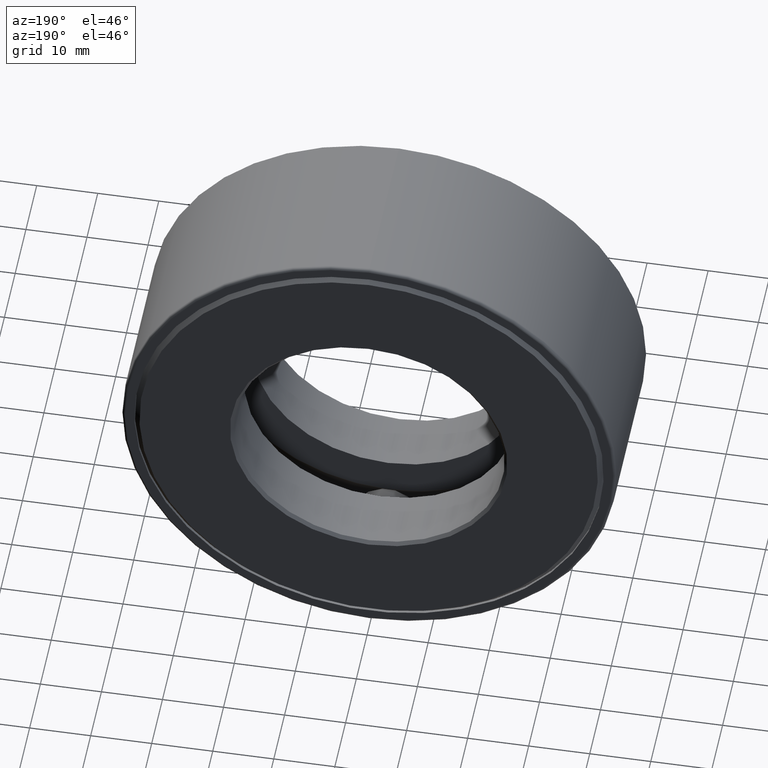
[diagram: clean part render]
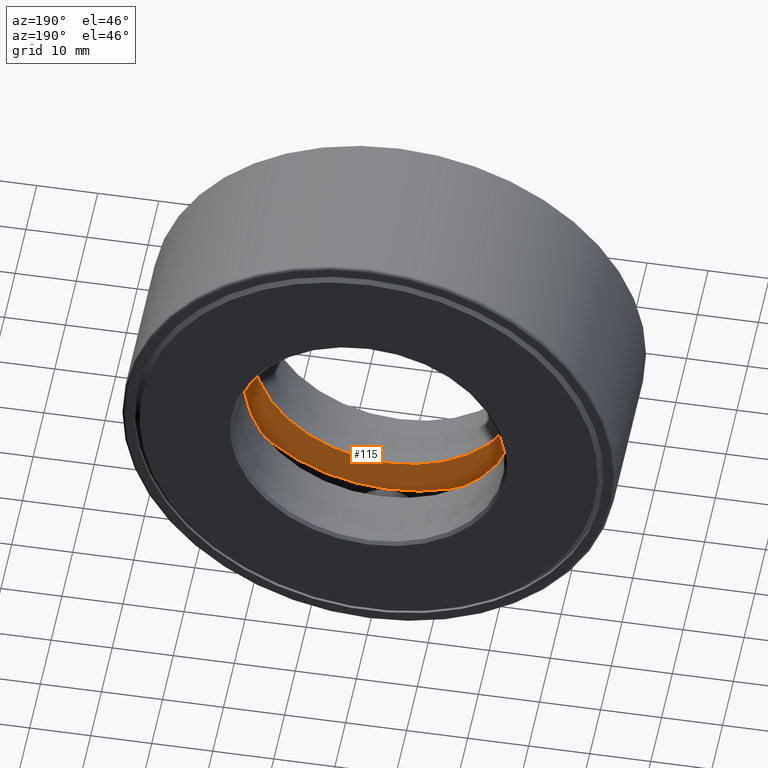
[diagram: same view with one face highlighted and labeled with its STEP entity id]
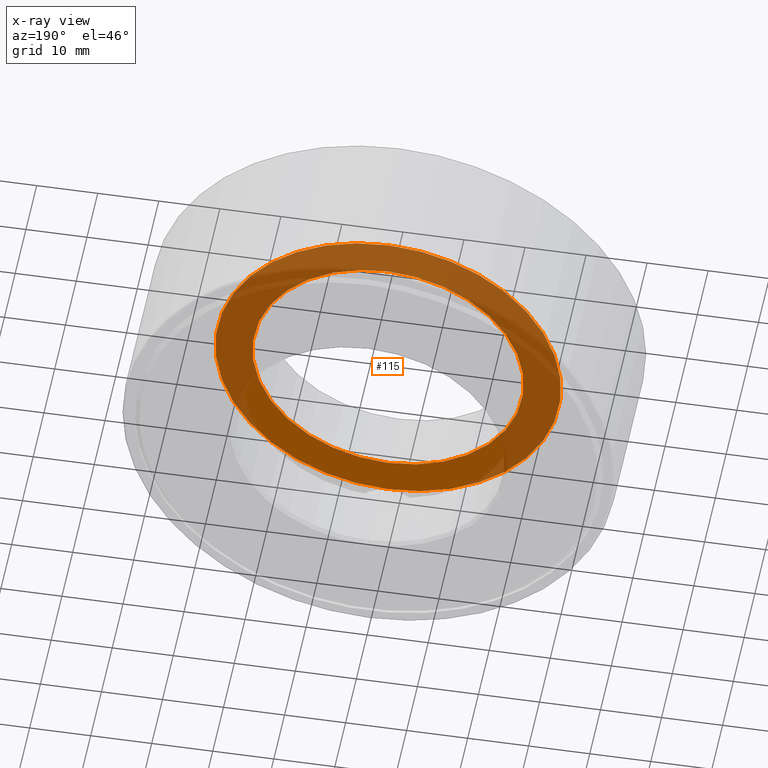
[diagram: x-ray of the same camera — body ghosted, the highlighted face saturated]
A machine part, auxiliary view. The second image highlights one B-rep face of the part: STEP entity #115.
The next image is the same camera in x-ray: the body ghosted, the highlighted face saturated — about 69% of this face is hidden behind the body in this view.
In plain terms, the highlighted planar face has unit normal (0, -1, 0).
Its self-contained STEP definition (entity closure, byte-faithful):
#35 = PLANE ( 'NONE',  #262 ) ;
#53 = DIRECTION ( 'NONE',  ( 0.0000000000000000000, 0.0000000000000000000, 1.000000000000000000 ) ) ;
#115 = ADVANCED_FACE ( 'NONE', ( #244, #393 ), #35, .F. ) ;
#119 = DIRECTION ( 'NONE',  ( -0.0000000000000000000, 1.000000000000000000, -0.0000000000000000000 ) ) ;
#144 = CARTESIAN_POINT ( 'NONE',  ( 0.0000000000000000000, 0.4125000000000000900, 0.8750000000000001100 ) ) ;
#164 = AXIS2_PLACEMENT_3D ( 'NONE', #301, #432, #53 ) ;
#169 = CARTESIAN_POINT ( 'NONE',  ( -1.175064960778426000E-016, 0.4125000000000000300, 0.0000000000000000000 ) ) ;
#186 = CIRCLE ( 'NONE', #164, 1.114749999999999900 ) ;
#187 = DIRECTION ( 'NONE',  ( 0.0000000000000000000, -0.0000000000000000000, -1.000000000000000000 ) ) ;
#241 = EDGE_CURVE ( 'NONE', #250, #250, #186, .T. ) ;
#244 = FACE_BOUND ( 'NONE', #445, .T. ) ;
#250 = VERTEX_POINT ( 'NONE', #595 ) ;
#256 = AXIS2_PLACEMENT_3D ( 'NONE', #538, #119, #403 ) ;
#262 = AXIS2_PLACEMENT_3D ( 'NONE', #169, #411, #187 ) ;
#269 = ORIENTED_EDGE ( 'NONE', *, *, #474, .F. ) ;
#301 = CARTESIAN_POINT ( 'NONE',  ( 0.0000000000000000000, 0.4125000000000000300, 0.0000000000000000000 ) ) ;
#393 = FACE_OUTER_BOUND ( 'NONE', #527, .T. ) ;
#403 = DIRECTION ( 'NONE',  ( 0.0000000000000000000, 0.0000000000000000000, 1.000000000000000000 ) ) ;
#411 = DIRECTION ( 'NONE',  ( 0.0000000000000000000, -1.000000000000000000, 0.0000000000000000000 ) ) ;
#425 = ORIENTED_EDGE ( 'NONE', *, *, #241, .T. ) ;
#432 = DIRECTION ( 'NONE',  ( -0.0000000000000000000, 1.000000000000000000, -0.0000000000000000000 ) ) ;
#445 = EDGE_LOOP ( 'NONE', ( #269 ) ) ;
#474 = EDGE_CURVE ( 'NONE', #585, #585, #570, .T. ) ;
#527 = EDGE_LOOP ( 'NONE', ( #425 ) ) ;
#538 = CARTESIAN_POINT ( 'NONE',  ( 0.0000000000000000000, 0.4125000000000000900, 0.0000000000000000000 ) ) ;
#570 = CIRCLE ( 'NONE', #256, 0.8750000000000001100 ) ;
#585 = VERTEX_POINT ( 'NONE', #144 ) ;
#595 = CARTESIAN_POINT ( 'NONE',  ( 0.0000000000000000000, 0.4125000000000000300, 1.114749999999999900 ) ) ;